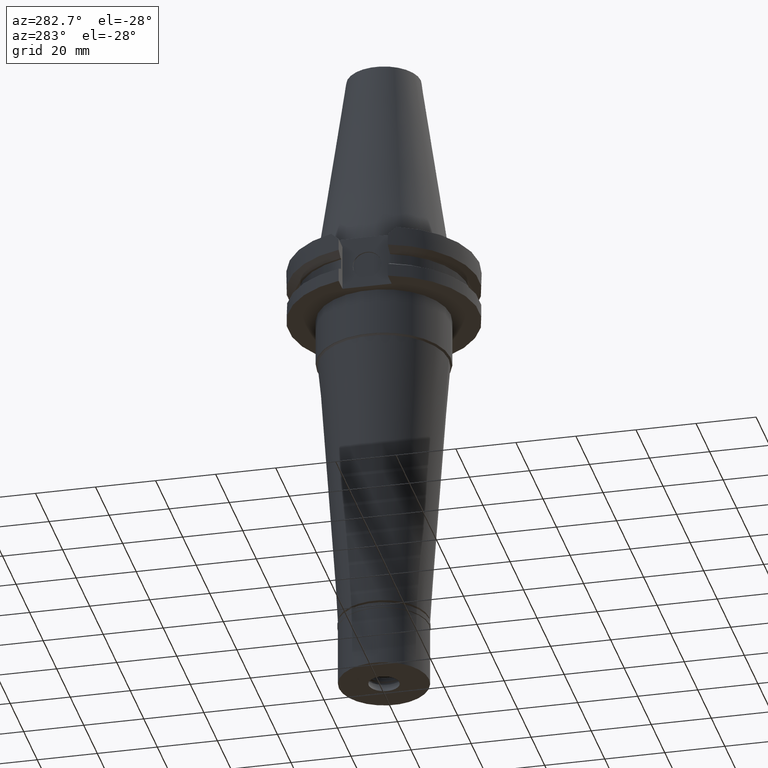
[diagram: clean part render]
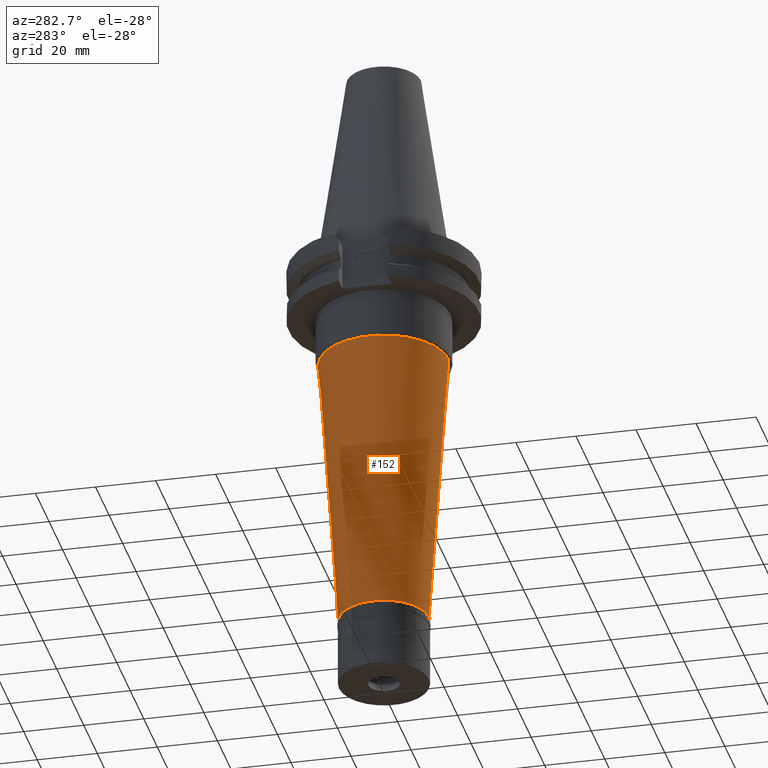
[diagram: same view with one face highlighted and labeled with its STEP entity id]
A machine part, auxiliary view. The second image highlights one B-rep face of the part: STEP entity #152.
In plain terms, the highlighted conical surface has half-angle 4 deg.
Its self-contained STEP definition (entity closure, byte-faithful):
#152 = ADVANCED_FACE ( 'NONE', ( #2847 ), #2512, .T. ) ;
#243 = EDGE_CURVE ( 'NONE', #3288, #2705, #1697, .T. ) ;
#279 = CARTESIAN_POINT ( 'NONE',  ( 0.0000000000000000000, 15.00000000000000000, -129.5999999999999943 ) ) ;
#302 = DIRECTION ( 'NONE',  ( 0.0000000000000000000, 0.0000000000000000000, -1.000000000000000000 ) ) ;
#325 = CARTESIAN_POINT ( 'NONE',  ( 0.0000000000000000000, -21.58011300388000109, -35.50000000000000000 ) ) ;
#338 = CARTESIAN_POINT ( 'NONE',  ( 0.0000000000000000000, 0.0000000000000000000, -35.50000000000000000 ) ) ;
#401 = LINE ( 'NONE', #2522, #2982 ) ;
#475 = DIRECTION ( 'NONE',  ( 0.0000000000000000000, 0.0000000000000000000, 1.000000000000000000 ) ) ;
#526 = VERTEX_POINT ( 'NONE', #279 ) ;
#727 = DIRECTION ( 'NONE',  ( 0.0000000000000000000, 0.06975647374411170221, -0.9975640502598251969 ) ) ;
#1050 = AXIS2_PLACEMENT_3D ( 'NONE', #1564, #475, #2559 ) ;
#1089 = AXIS2_PLACEMENT_3D ( 'NONE', #2468, #2483, #2797 ) ;
#1321 = ORIENTED_EDGE ( 'NONE', *, *, #3004, .T. ) ;
#1343 = CARTESIAN_POINT ( 'NONE',  ( 0.0000000000000000000, -15.00000000000000000, -129.5999999999999943 ) ) ;
#1388 = ORIENTED_EDGE ( 'NONE', *, *, #243, .T. ) ;
#1547 = VERTEX_POINT ( 'NONE', #1343 ) ;
#1564 = CARTESIAN_POINT ( 'NONE',  ( 0.0000000000000000000, 0.0000000000000000000, -82.54999999999999716 ) ) ;
#1697 = CIRCLE ( 'NONE', #2942, 21.58011300388000109 ) ;
#1789 = CARTESIAN_POINT ( 'NONE',  ( 0.0000000000000000000, 21.58011300388000109, -35.50000000000000000 ) ) ;
#1886 = VECTOR ( 'NONE', #2274, 1000.000000000000114 ) ;
#2138 = DIRECTION ( 'NONE',  ( 0.0000000000000000000, -1.000000000000000000, 0.0000000000000000000 ) ) ;
#2274 = DIRECTION ( 'NONE',  ( 0.0000000000000000000, -0.06975647374411170221, -0.9975640502598251969 ) ) ;
#2286 = EDGE_LOOP ( 'NONE', ( #1321, #2413, #1388, #2302 ) ) ;
#2302 = ORIENTED_EDGE ( 'NONE', *, *, #3260, .T. ) ;
#2413 = ORIENTED_EDGE ( 'NONE', *, *, #3058, .F. ) ;
#2468 = CARTESIAN_POINT ( 'NONE',  ( 0.0000000000000000000, 0.0000000000000000000, -129.5999999999999943 ) ) ;
#2483 = DIRECTION ( 'NONE',  ( 0.0000000000000000000, 0.0000000000000000000, 1.000000000000000000 ) ) ;
#2512 = CONICAL_SURFACE ( 'NONE', #1050, 18.29005650194000054, 0.06981317007975955391 ) ;
#2522 = CARTESIAN_POINT ( 'NONE',  ( 0.0000000000000000000, -21.58011300388000109, -35.50000000000000000 ) ) ;
#2559 = DIRECTION ( 'NONE',  ( 0.0000000000000000000, 1.000000000000000000, 0.0000000000000000000 ) ) ;
#2568 = LINE ( 'NONE', #1789, #1886 ) ;
#2705 = VERTEX_POINT ( 'NONE', #3075 ) ;
#2797 = DIRECTION ( 'NONE',  ( 0.0000000000000000000, 1.000000000000000000, 0.0000000000000000000 ) ) ;
#2847 = FACE_OUTER_BOUND ( 'NONE', #2286, .T. ) ;
#2942 = AXIS2_PLACEMENT_3D ( 'NONE', #338, #302, #2138 ) ;
#2982 = VECTOR ( 'NONE', #727, 1000.000000000000114 ) ;
#3004 = EDGE_CURVE ( 'NONE', #526, #1547, #3262, .T. ) ;
#3058 = EDGE_CURVE ( 'NONE', #3288, #1547, #401, .T. ) ;
#3075 = CARTESIAN_POINT ( 'NONE',  ( 0.0000000000000000000, 21.58011300388000109, -35.50000000000000000 ) ) ;
#3260 = EDGE_CURVE ( 'NONE', #2705, #526, #2568, .T. ) ;
#3262 = CIRCLE ( 'NONE', #1089, 15.00000000000000000 ) ;
#3288 = VERTEX_POINT ( 'NONE', #325 ) ;